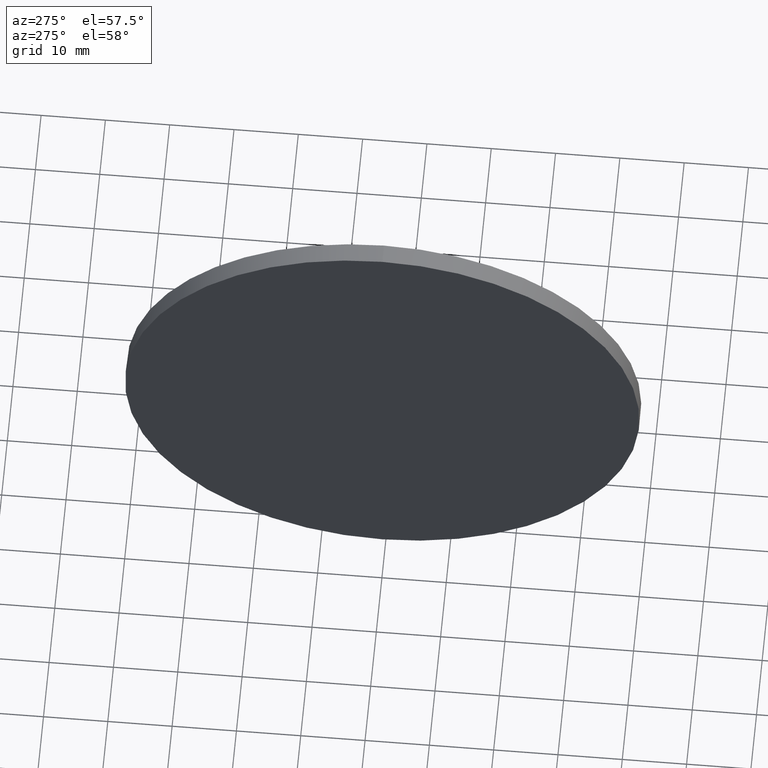
[diagram: clean part render]
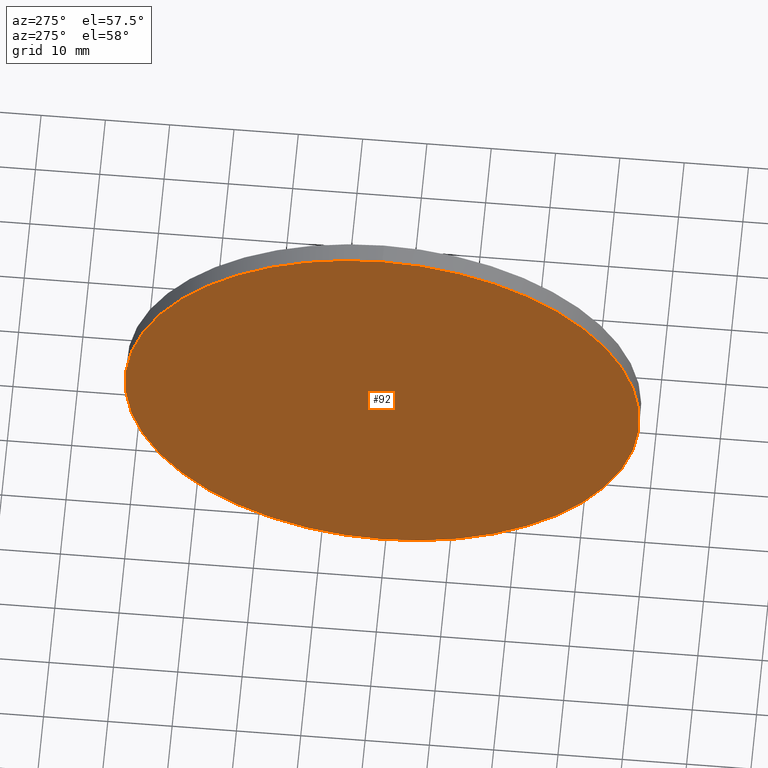
[diagram: same view with one face highlighted and labeled with its STEP entity id]
A machine part, auxiliary view. The second image highlights one B-rep face of the part: STEP entity #92.
In plain terms, the highlighted planar face has unit normal (1, 0, 0).
Its self-contained STEP definition (entity closure, byte-faithful):
#8 = CIRCLE ( 'NONE', #183, 40.00000000000000700 ) ;
#13 = CARTESIAN_POINT ( 'NONE',  ( 225.9490942240209100, 130.4671098528244200, 0.0000000000000000000 ) ) ;
#28 = EDGE_LOOP ( 'NONE', ( #36, #53 ) ) ;
#36 = ORIENTED_EDGE ( 'NONE', *, *, #42, .T. ) ;
#37 = AXIS2_PLACEMENT_3D ( 'NONE', #150, #151, #61 ) ;
#42 = EDGE_CURVE ( 'NONE', #142, #179, #8, .T. ) ;
#44 = PLANE ( 'NONE',  #37 ) ;
#53 = ORIENTED_EDGE ( 'NONE', *, *, #105, .T. ) ;
#58 = CARTESIAN_POINT ( 'NONE',  ( 225.9490942240209100, 130.4671098528244200, 0.0000000000000000000 ) ) ;
#61 = DIRECTION ( 'NONE',  ( 0.0000000000000000000, 0.0000000000000000000, -1.000000000000000000 ) ) ;
#86 = FACE_OUTER_BOUND ( 'NONE', #28, .T. ) ;
#91 = DIRECTION ( 'NONE',  ( 0.0000000000000000000, 0.0000000000000000000, 1.000000000000000000 ) ) ;
#92 = ADVANCED_FACE ( 'NONE', ( #86 ), #44, .F. ) ;
#105 = EDGE_CURVE ( 'NONE', #179, #142, #154, .T. ) ;
#112 = DIRECTION ( 'NONE',  ( -1.000000000000000000, -0.0000000000000000000, -0.0000000000000000000 ) ) ;
#121 = CARTESIAN_POINT ( 'NONE',  ( 225.9490942240209100, 130.4671098528244200, 40.00000000000000700 ) ) ;
#132 = DIRECTION ( 'NONE',  ( -1.000000000000000000, -0.0000000000000000000, -0.0000000000000000000 ) ) ;
#142 = VERTEX_POINT ( 'NONE', #121 ) ;
#150 = CARTESIAN_POINT ( 'NONE',  ( 225.9490942240209100, 130.4671098528244200, 0.0000000000000000000 ) ) ;
#151 = DIRECTION ( 'NONE',  ( 1.000000000000000000, 0.0000000000000000000, 0.0000000000000000000 ) ) ;
#154 = CIRCLE ( 'NONE', #175, 40.00000000000000700 ) ;
#163 = DIRECTION ( 'NONE',  ( 0.0000000000000000000, 0.0000000000000000000, 1.000000000000000000 ) ) ;
#171 = CARTESIAN_POINT ( 'NONE',  ( 225.9490942240209100, 130.4671098528244200, -40.00000000000000700 ) ) ;
#175 = AXIS2_PLACEMENT_3D ( 'NONE', #58, #132, #163 ) ;
#179 = VERTEX_POINT ( 'NONE', #171 ) ;
#183 = AXIS2_PLACEMENT_3D ( 'NONE', #13, #112, #91 ) ;